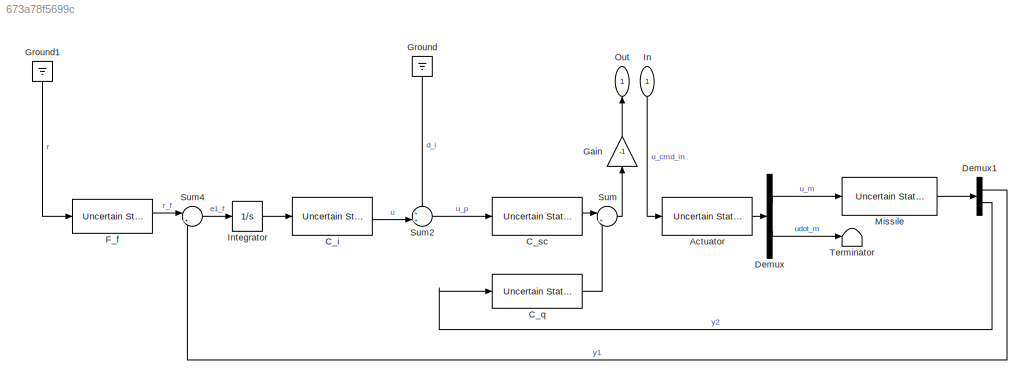
MODEL slx_673a78f5699c
KIND model
CONFIG AbsTol = auto
CONFIG EnableMultiTasking = off
CONFIG FixedStep = auto
CONFIG MaxStep = auto
CONFIG MinStep = auto
CONFIG RelTol = 1e-3
CONFIG SampleTimeConstraint = Unconstrained
CONFIG SolverName = VariableStepAuto
CONFIG StartTime = 0.0
CONFIG StopTime = 10.0
BLOCK [Reference] Actuator  REF=RCTblocks/Uncertain State Space
  SourceBlock = RCTblocks/Uncertain State Space
  SourceType = Uncertain State Space Block
  Tag = USS
BLOCK [Reference] C_i  REF=RCTblocks/Uncertain State Space
  SourceBlock = RCTblocks/Uncertain State Space
  SourceType = Uncertain State Space Block
  Tag = USS
BLOCK [Reference] C_q  REF=RCTblocks/Uncertain State Space
  SourceBlock = RCTblocks/Uncertain State Space
  SourceType = Uncertain State Space Block
  Tag = USS
BLOCK [Reference] C_sc  REF=RCTblocks/Uncertain State Space
  SourceBlock = RCTblocks/Uncertain State Space
  SourceType = Uncertain State Space Block
  Tag = USS
BLOCK [Demux] Demux
  Outputs = 2
BLOCK [Demux] Demux1
  Outputs = 2
BLOCK [Reference] F_f  REF=RCTblocks/Uncertain State Space
  SourceBlock = RCTblocks/Uncertain State Space
  SourceType = Uncertain State Space Block
  Tag = USS
BLOCK [Gain] Gain
  Gain = -1
  NameLocation = right
BLOCK [Ground] Ground
  NameLocation = left
BLOCK [Ground] Ground1
  NameLocation = left
BLOCK [Inport] In
  NameLocation = right
BLOCK [Integrator] Integrator
BLOCK [Reference] Missile  REF=RCTblocks/Uncertain State Space
  SourceBlock = RCTblocks/Uncertain State Space
  SourceType = Uncertain State Space Block
  Tag = USS
BLOCK [Outport] Out
  NameLocation = left
BLOCK [Sum] Sum
  Inputs = |+-
BLOCK [Sum] Sum2
  Inputs = ++|
BLOCK [Sum] Sum4
  Inputs = |+-
BLOCK [Terminator] Terminator
LINE Actuator:1 -> Demux:1
LINE C_i:1 -> Sum2:2
LINE C_q:1 -> Sum:2
LINE C_sc:1 -> Sum:1
LINE Demux1:1 -> Sum4:2
LINE Demux1:2 -> C_q:1
LINE Demux:1 -> Missile:1
LINE Demux:2 -> Terminator:1
LINE F_f:1 -> Sum4:1
LINE Gain:1 -> Out:1
LINE Ground1:1 -> F_f:1
LINE Ground:1 -> Sum2:1
LINE In:1 -> Actuator:1
LINE Integrator:1 -> C_i:1
LINE Missile:1 -> Demux1:1
LINE Sum2:1 -> C_sc:1
LINE Sum4:1 -> Integrator:1
LINE Sum:1 -> Gain:1
